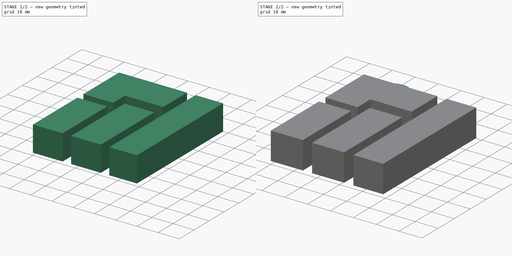
[diagram: build sequence overview — one tinted view per stage of 2, left to right]
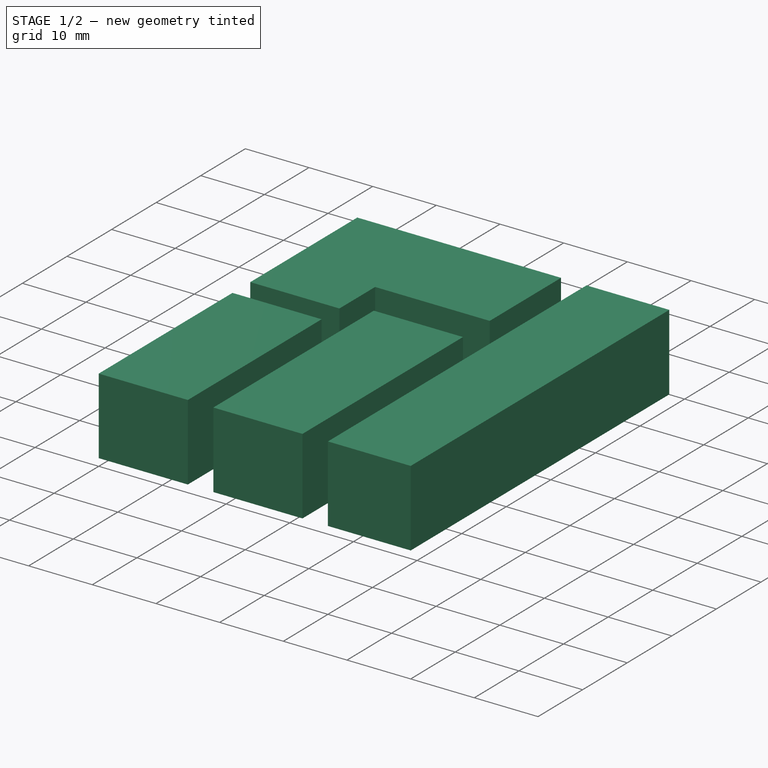
[diagram: stage 1 of 2 — iso view after this stage's code; geometry added in this stage tinted green]
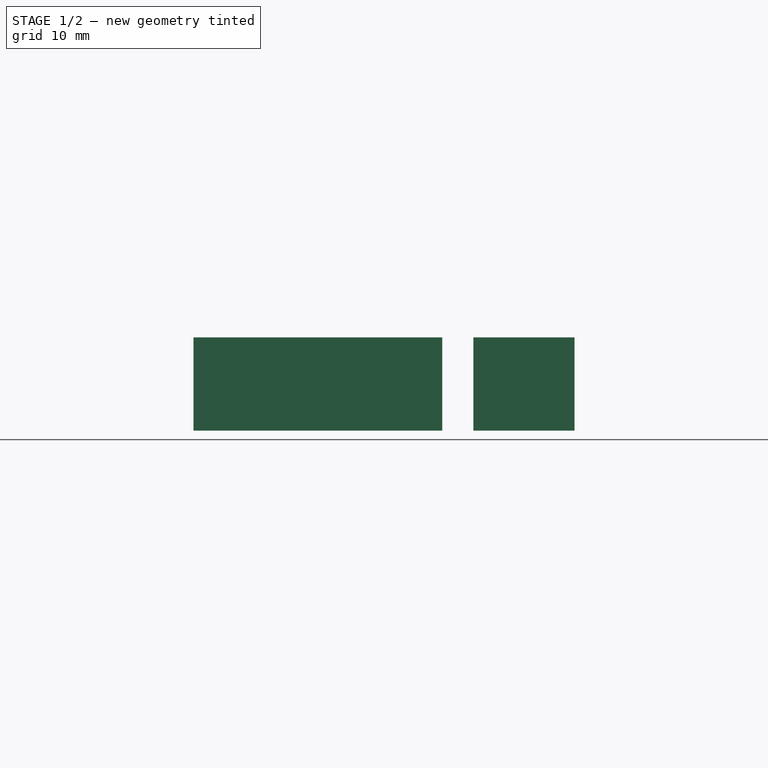
[diagram: stage 1 of 2 — front view after this stage's code; geometry added in this stage tinted green]
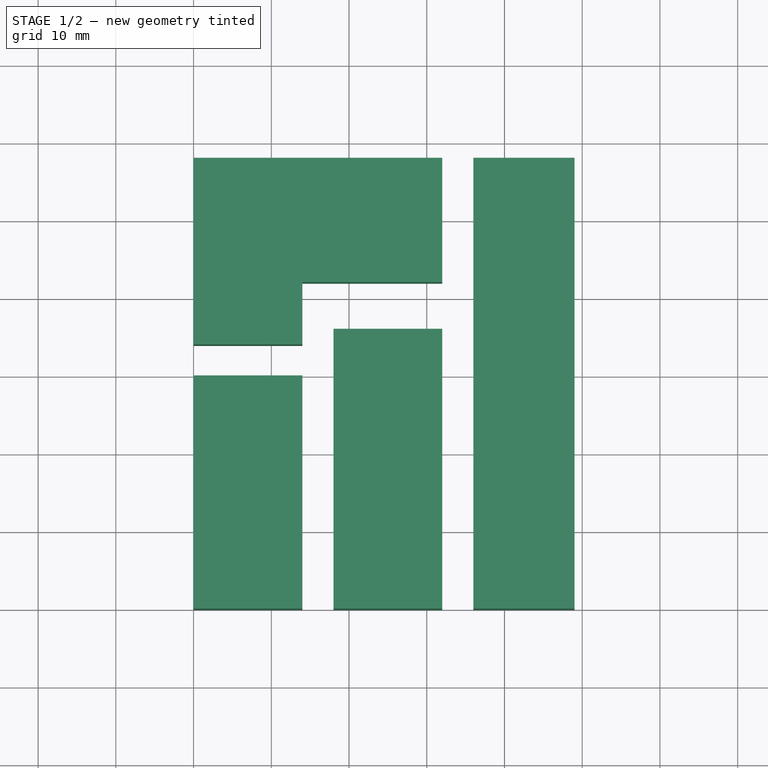
[diagram: stage 1 of 2 — top view after this stage's code; geometry added in this stage tinted green]
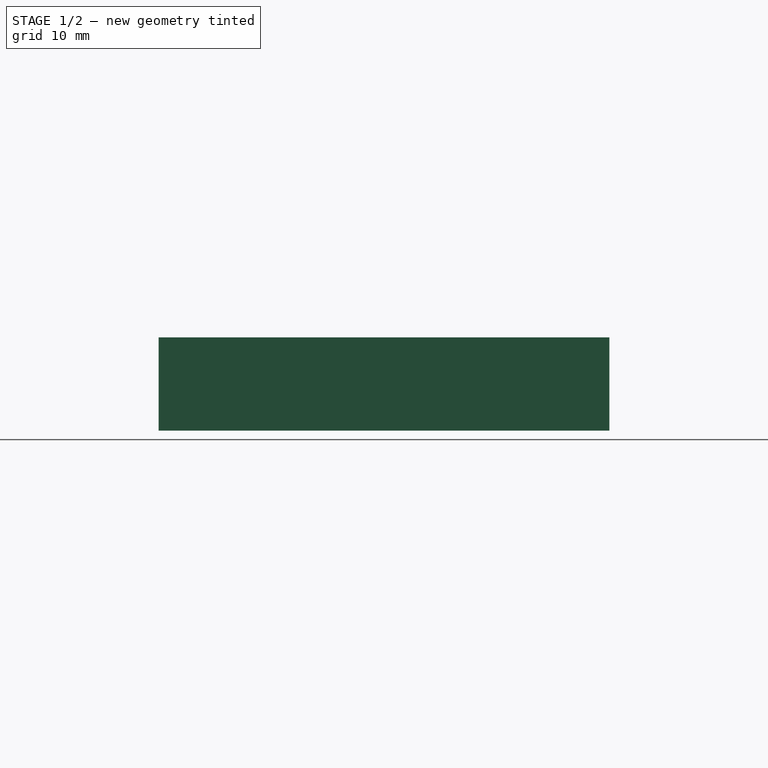
[diagram: stage 1 of 2 — right view after this stage's code; geometry added in this stage tinted green]
FCSTD DOCUMENT  (FreeCAD 0.16RUnknown)
Label: Llavero Manjaro1
License: CreativeCommons Attribution-ShareAlike
LicenseURL: http://creativecommons.org/licenses/by-sa/4.0/
objects: Part::Feature×3, Sketcher::SketchObject×2, PartDesign::Pad×2, App::DocumentObjectGroup×1
note: 9 computed .brp shape members not serialized (recipe doc carries the construction recipe); baked Part::Feature solids carry a one-line shape summary decoded from their .brp

FEATURE [Part::Feature] Sweep  label="key-ring-model-1"
  Placement = pos=(-1.2,30.2546,1.6391) rot=(0.333333,0.881918,0.333333;1.69612rad)
  shape: bbox 3.31 x 27.02 x 26.33 mm, 4 faces (baked)
FEATURE [Part::Feature] Cut  label="key-model-1"
  Placement = pos=(-5.46976,36.5266,0) rot=(0,0,1;0.517888rad)
  shape: bbox 49.82 x 36.6 x 2.3 mm, 44 faces (baked)
FEATURE [App::DocumentObjectGroup] Group  label="Assembly"
  Group = -> [Sweep,Cut]
FEATURE [Sketcher::SketchObject] Sketch
  sketch-geometry (20):
    g0: LineSegment StartX=0 StartY=0 StartZ=0 EndX=0 EndY=30 EndZ=0
    g1: LineSegment StartX=0 StartY=30 StartZ=0 EndX=14 EndY=30 EndZ=0
    g2: LineSegment StartX=14 StartY=30 StartZ=0 EndX=14 EndY=0 EndZ=0
    g3: LineSegment StartX=14 StartY=0 StartZ=0 EndX=0 EndY=0 EndZ=0
    g4: LineSegment StartX=0 StartY=34 StartZ=0 EndX=0 EndY=58 EndZ=0
    g5: LineSegment StartX=0 StartY=58 StartZ=0 EndX=32 EndY=58 EndZ=0
    g6: LineSegment StartX=32 StartY=58 StartZ=0 EndX=32 EndY=42 EndZ=0
    g7: LineSegment StartX=32 StartY=42 StartZ=0 EndX=14 EndY=42 EndZ=0
    g8: LineSegment StartX=14 StartY=42 StartZ=0 EndX=14 EndY=34 EndZ=0
    g9: LineSegment StartX=14 StartY=34 StartZ=0 EndX=0 EndY=34 EndZ=0
    g10: LineSegment StartX=18 StartY=36 StartZ=0 EndX=32 EndY=36 EndZ=0
    g11: LineSegment StartX=32 StartY=36 StartZ=0 EndX=32 EndY=0 EndZ=0
    g12: LineSegment StartX=32 StartY=0 StartZ=0 EndX=18 EndY=0 EndZ=0
    g13: LineSegment StartX=18 StartY=0 StartZ=0 EndX=18 EndY=36 EndZ=0
    g14: LineSegment StartX=36 StartY=58 StartZ=0 EndX=49 EndY=58 EndZ=0
    g15: LineSegment StartX=49 StartY=58 StartZ=0 EndX=49 EndY=0 EndZ=0
    g16: LineSegment StartX=49 StartY=0 StartZ=0 EndX=36 EndY=0 EndZ=0
    g17: LineSegment StartX=36 StartY=0 StartZ=0 EndX=36 EndY=58 EndZ=0
    g18: LineSegment [constr] StartX=32 StartY=58 StartZ=0 EndX=36 EndY=58 EndZ=0
    g19: LineSegment [constr] StartX=32 StartY=42 StartZ=0 EndX=32 EndY=36 EndZ=0
  constraints (58):
    c: Coincident(g0,g1)
    c: Vertical(g0)
    c: Horizontal(g1)
    c: Vertical(g2)
    c: Coincident(g3,g0)
    c: DistanceY(g0,g0) = 30
    c: Coincident(g4,g9)
    c: Horizontal(g9)
    c: DistanceY(g0,g4) = 4
    c: DistanceY(g4,g4) = 24
    c: Coincident(g5,g6)
    c: Vertical(g6)
    c: Coincident(g6,g7)
    c: Horizontal(g7)
    c: DistanceX(g5,g5) = 32
    c: DistanceY(g6,g6) = 16
    c: Horizontal(g5)
    c: Coincident(g7,g8)
    c: Vertical(g8)
    c: Coincident(g9,g8)
    c: Vertical(g4)
    c: PointOnObject(g4,g-2)
    c: PointOnObject(g0,g-2)
    c: PointOnObject(g0,g-1)
    c: Coincident(g4,g5)
    c: Coincident(g10,g11)
    c: Coincident(g11,g12)
    c: Coincident(g12,g13)
    c: Coincident(g13,g10)
    c: Horizontal(g10)
    c: Horizontal(g12)
    c: Vertical(g11)
    c: Vertical(g13)
    c: Horizontal(g3)
    c: Coincident(g1,g2)
    c: Equal(g1,g9)
    c: PointOnObject(g12,g-1)
    c: DistanceX(g3,g12) = 4
    c: Coincident(g14,g15)
    c: Coincident(g15,g16)
    c: Coincident(g16,g17)
    c: Coincident(g17,g14)
    c: Horizontal(g14)
    c: Horizontal(g16)
    c: Vertical(g17)
    c: PointOnObject(g15,g-1)
    c: DistanceX(g14,g14) = 13
    c: Horizontal(g18)
    c: Coincident(g18,g14)
    c: Coincident(g18,g5)
    c: DistanceX(g18,g18) = 4
    c: DistanceY(g13,g13) = 36
    c: Vertical(g19)
    c: Coincident(g10,g19)
    c: Coincident(g6,g19)
    c: Coincident(g2,g3)
    c: Vertical(g15)
    c: DistanceX(g9,g9) = 14
FEATURE [PartDesign::Pad] Pad
  Length = 12
  Length2 = 100
  Sketch = -> Sketch
  Type = 0
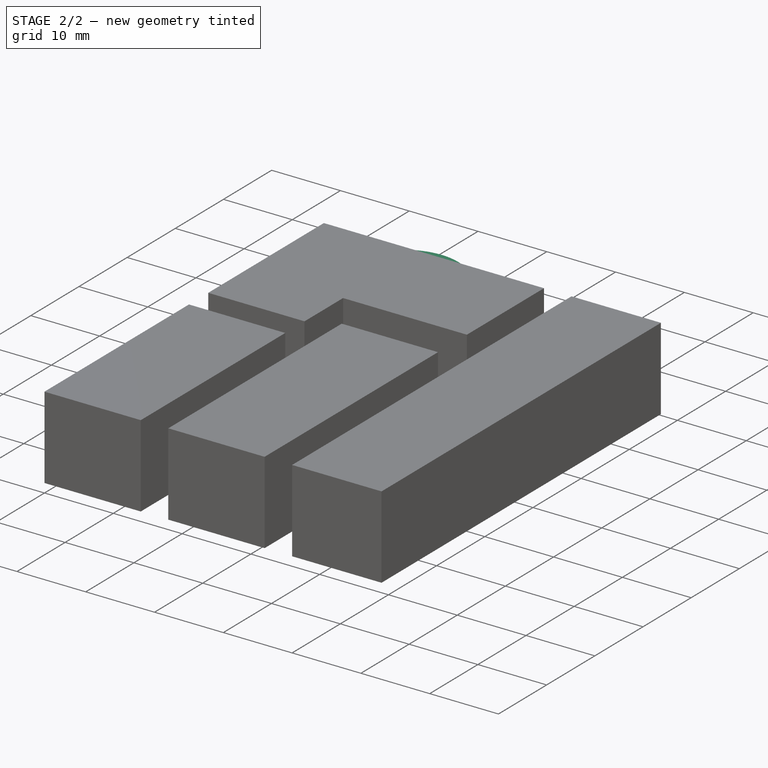
[diagram: stage 2 of 2 — iso view after this stage's code; geometry added in this stage tinted green]
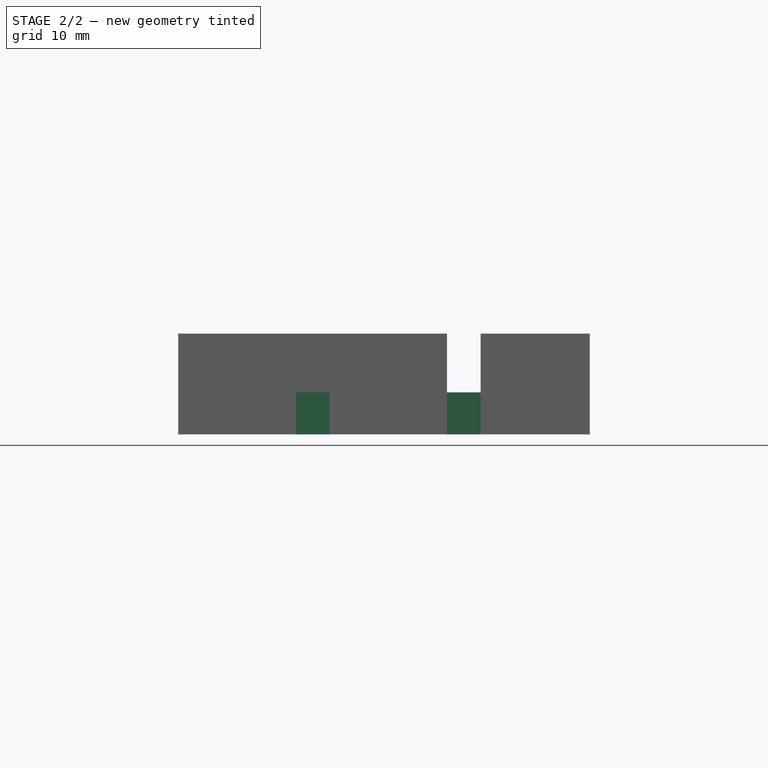
[diagram: stage 2 of 2 — front view after this stage's code; geometry added in this stage tinted green]
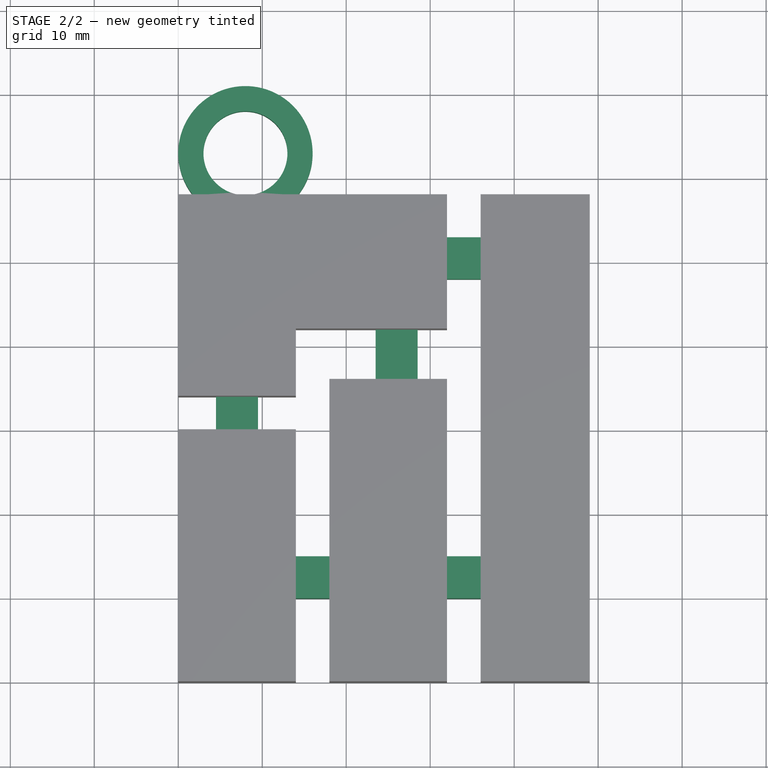
[diagram: stage 2 of 2 — top view after this stage's code; geometry added in this stage tinted green]
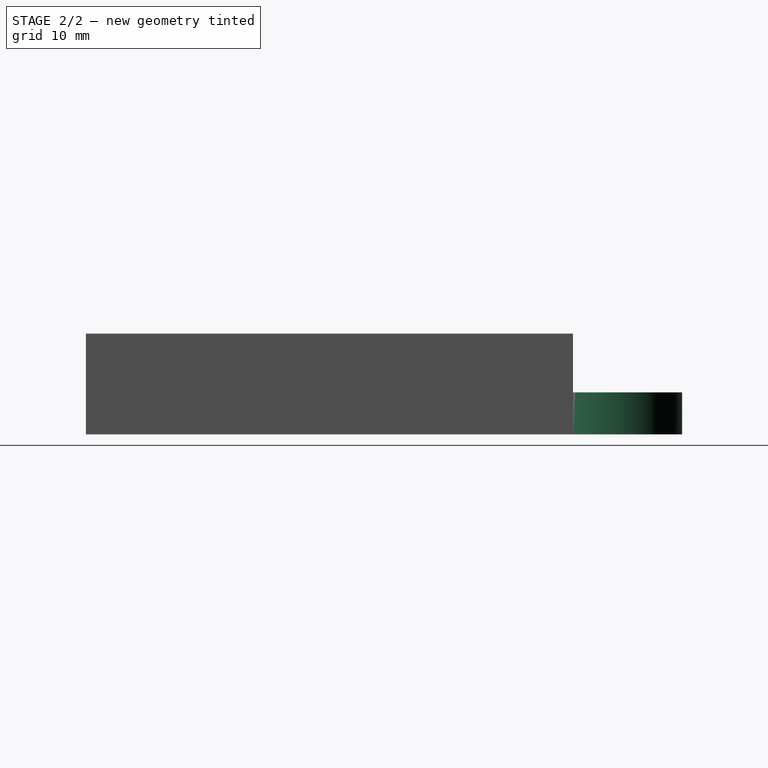
[diagram: stage 2 of 2 — right view after this stage's code; geometry added in this stage tinted green]
FEATURE [Sketcher::SketchObject] Sketch001
  ExternalGeometry = -> [Pad]
  Placement = pos=(0,0,0) rot=(1,0,0;3.14159rad)
  Support = -> Pad [Face5]
  sketch-geometry (18):
    g0: LineSegment StartX=10 StartY=-10 StartZ=0 EndX=40 EndY=-10 EndZ=0
    g1: LineSegment StartX=40 StartY=-10 StartZ=0 EndX=40 EndY=-15 EndZ=0
    g2: LineSegment StartX=40 StartY=-15 StartZ=0 EndX=10 EndY=-15 EndZ=0
    g3: LineSegment StartX=10 StartY=-15 StartZ=0 EndX=10 EndY=-10 EndZ=0
    g4: LineSegment StartX=4.5 StartY=-26 StartZ=0 EndX=9.5 EndY=-26 EndZ=0
    g5: LineSegment StartX=9.5 StartY=-26 StartZ=0 EndX=9.5 EndY=-36 EndZ=0
    g6: LineSegment StartX=9.5 StartY=-36 StartZ=0 EndX=4.5 EndY=-36 EndZ=0
    g7: LineSegment StartX=4.5 StartY=-36 StartZ=0 EndX=4.5 EndY=-26 EndZ=0
    g8: LineSegment StartX=23.5 StartY=-34 StartZ=0 EndX=28.5 EndY=-34 EndZ=0
    g9: LineSegment StartX=28.5 StartY=-34 StartZ=0 EndX=28.5 EndY=-44 EndZ=0
    g10: LineSegment StartX=28.5 StartY=-44 StartZ=0 EndX=23.5 EndY=-44 EndZ=0
    g11: LineSegment StartX=23.5 StartY=-44 StartZ=0 EndX=23.5 EndY=-34 EndZ=0
    g12: LineSegment StartX=30 StartY=-48 StartZ=0 EndX=40 EndY=-48 EndZ=0
    g13: LineSegment StartX=40 StartY=-48 StartZ=0 EndX=40 EndY=-53 EndZ=0
    g14: LineSegment StartX=40 StartY=-53 StartZ=0 EndX=30 EndY=-53 EndZ=0
    g15: LineSegment StartX=30 StartY=-53 StartZ=0 EndX=30 EndY=-48 EndZ=0
    g16: Circle CenterX=8 CenterY=-63 CenterZ=0 NormalX=0 NormalY=0 NormalZ=1 Radius=5
    g17: Circle CenterX=8 CenterY=-63 CenterZ=0 NormalX=0 NormalY=0 NormalZ=1 Radius=8
  constraints (53):
    c: Coincident(g0,g1)
    c: Coincident(g1,g2)
    c: Coincident(g2,g3)
    c: Coincident(g3,g0)
    c: Horizontal(g0)
    c: Horizontal(g2)
    c: Vertical(g1)
    c: Vertical(g3)
    c: Coincident(g4,g5)
    c: Coincident(g5,g6)
    c: Coincident(g6,g7)
    c: Coincident(g7,g4)
    c: Horizontal(g4)
    c: Horizontal(g6)
    c: Vertical(g5)
    c: Vertical(g7)
    c: Coincident(g8,g9)
    c: Coincident(g9,g10)
    c: Coincident(g10,g11)
    c: Coincident(g11,g8)
    c: Horizontal(g8)
    c: Horizontal(g10)
    c: Vertical(g9)
    c: Vertical(g11)
    c: Coincident(g12,g13)
    c: Coincident(g13,g14)
    c: Coincident(g14,g15)
    c: Coincident(g15,g12)
    c: Horizontal(g12)
    c: Horizontal(g14)
    c: Vertical(g13)
    c: Vertical(g15)
    c: Coincident(g17,g16)
    c: Equal(g4,g3)
    c: Equal(g3,g8)
    c: Equal(g8,g15)
    c: Radius(g17) = 8
    c: Tangent(g17,g-2)
    c: Radius(g16) = 5
    c: DistanceY(g0,g-1) = 10
    c: DistanceY(g1,g1) = 5
    c: DistanceX(g-1,g4) = 4.5
    c: DistanceX(g4,g8) = 14
    c: Equal(g7,g11)
    c: Equal(g11,g12)
    c: DistanceY(g4,g-1) = 26
    c: DistanceX(g-1,g0) = 10
    c: DistanceX(g0,g0) = 30
    c: DistanceY(g7,g7) = 10
    c: DistanceY(g8,g-1) = 34
    c: DistanceX(g-1,g12) = 30
    c: DistanceY(g12,g-1) = 48
    c: Tangent(g16,g-4)
FEATURE [PartDesign::Pad] Pad001
  Length = 5
  Length2 = 100
  Reversed = true
  Sketch = -> Sketch001
  Type = 0
FEATURE [Part::Feature] Pad001001  label="Pad002"
  Placement = pos=(-7,-44,0) rot=(0,0,1;0rad)
  shape: bbox 49 x 71 x 12 mm, 41 faces (baked)
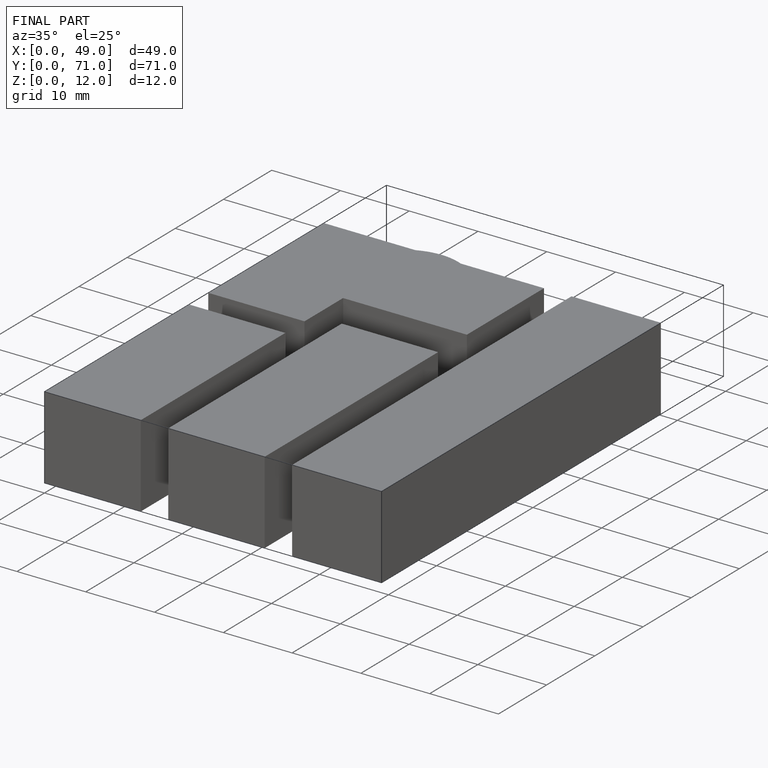
[diagram: finished part — iso view with bounding-box wireframe]
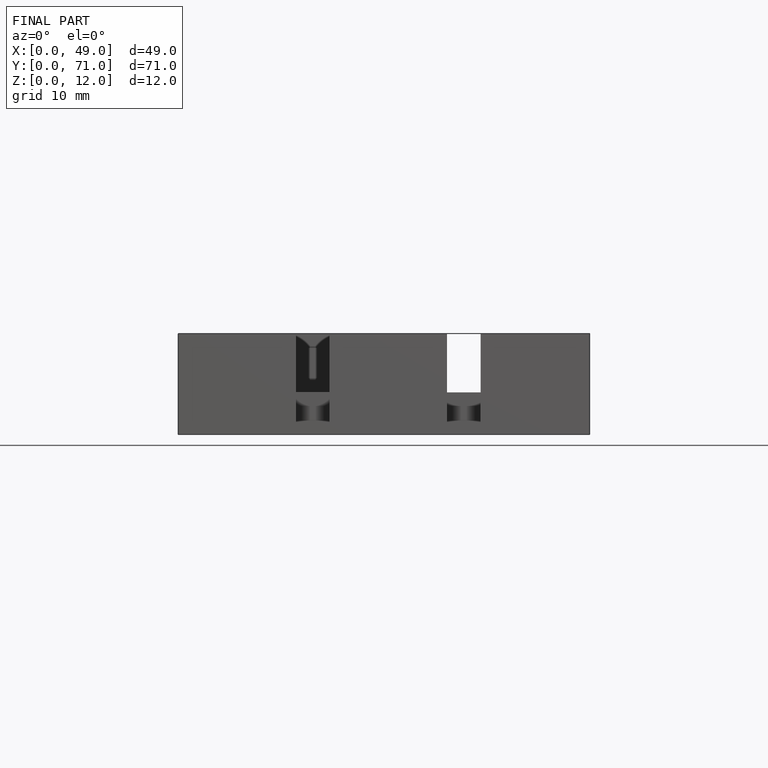
[diagram: finished part — front view with bounding-box wireframe]
